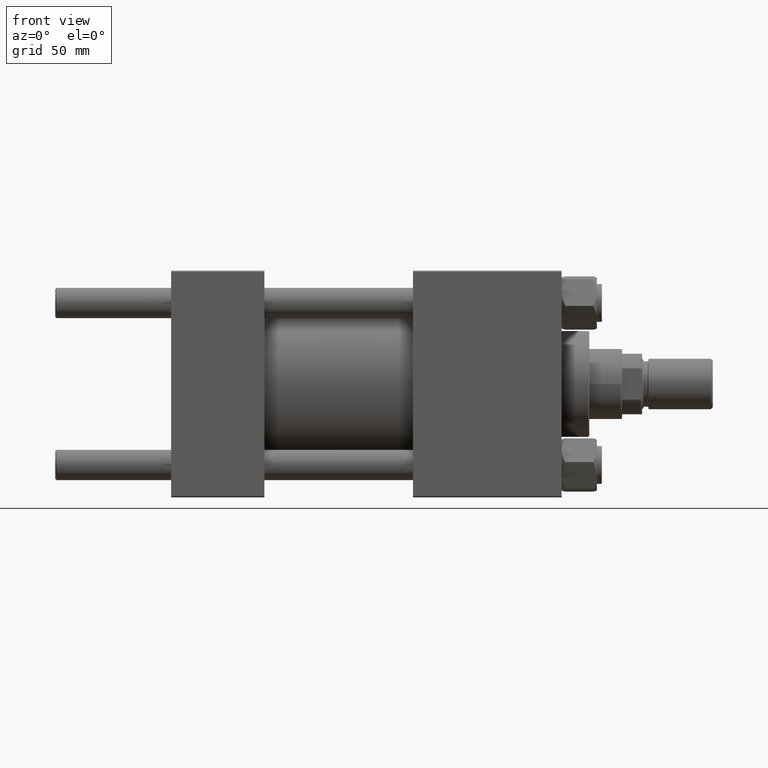
[diagram: clean part render]
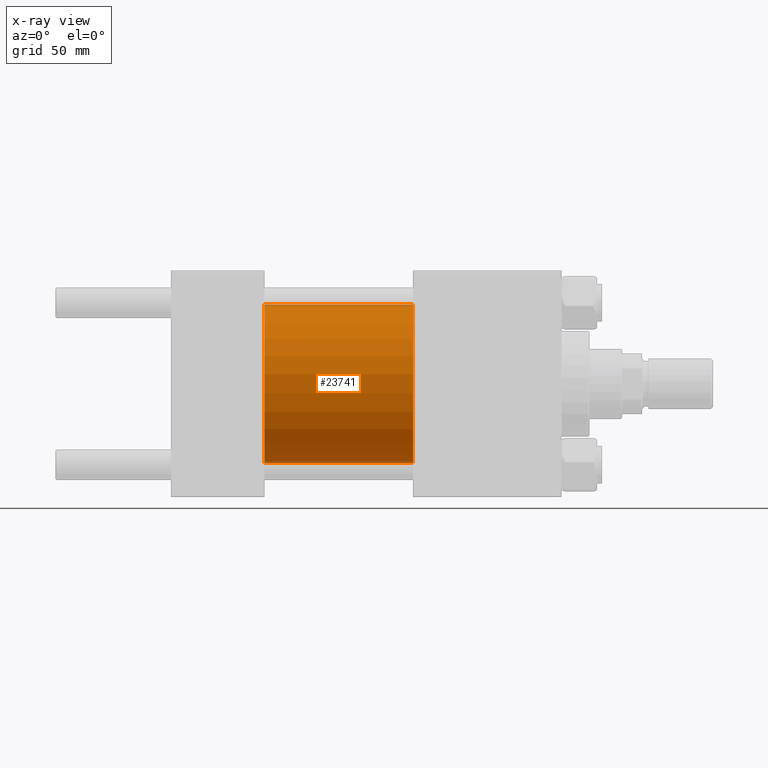
[diagram: x-ray — body ghosted, one internal face saturated and labeled with its STEP entity id]
A machine part, front view, then the same camera in x-ray: the body is ghosted and one INTERNAL B-rep face — a face not visible from any outside direction — is saturated and labeled: STEP entity #23741.
In plain terms, the highlighted cylindrical surface (partial cylindrical patch) has radius 31.5 mm, axis along (-1, -0, -0).
Its self-contained STEP definition (entity closure, byte-faithful):
#1499 = CYLINDRICAL_SURFACE ( 'NONE', #25776, 31.50000000000000000 ) ;
#2858 = EDGE_CURVE ( 'NONE', #11970, #4035, #38074, .T. ) ;
#3987 = ORIENTED_EDGE ( 'NONE', *, *, #14461, .F. ) ;
#4035 = VERTEX_POINT ( 'NONE', #35686 ) ;
#4311 = FACE_OUTER_BOUND ( 'NONE', #33288, .T. ) ;
#4970 = DIRECTION ( 'NONE',  ( 1.000000000000000000, 0.000000000000000000, 0.000000000000000000 ) ) ;
#5936 = CIRCLE ( 'NONE', #31184, 31.50000000000000000 ) ;
#7358 = CARTESIAN_POINT ( 'NONE',  ( 37.00000000000000000, 0.000000000000000000, 31.50000000000000000 ) ) ;
#8205 = CARTESIAN_POINT ( 'NONE',  ( 96.00000000000000000, 0.000000000000000000, 31.50000000000000000 ) ) ;
#8311 = DIRECTION ( 'NONE',  ( 0.000000000000000000, 0.000000000000000000, -1.000000000000000000 ) ) ;
#8814 = CARTESIAN_POINT ( 'NONE',  ( 96.00000000000000000, 3.857637417314162689E-15, -31.50000000000000000 ) ) ;
#9153 = CARTESIAN_POINT ( 'NONE',  ( 96.00000000000000000, 0.000000000000000000, 0.000000000000000000 ) ) ;
#10464 = DIRECTION ( 'NONE',  ( -1.000000000000000000, -0.000000000000000000, -0.000000000000000000 ) ) ;
#11970 = VERTEX_POINT ( 'NONE', #7358 ) ;
#12360 = DIRECTION ( 'NONE',  ( 0.000000000000000000, 0.000000000000000000, -1.000000000000000000 ) ) ;
#14461 = EDGE_CURVE ( 'NONE', #31478, #11970, #16609, .T. ) ;
#15163 = ORIENTED_EDGE ( 'NONE', *, *, #44075, .T. ) ;
#16609 = LINE ( 'NONE', #8205, #34434 ) ;
#16996 = ORIENTED_EDGE ( 'NONE', *, *, #46276, .T. ) ;
#17311 = VERTEX_POINT ( 'NONE', #8814 ) ;
#20044 = CARTESIAN_POINT ( 'NONE',  ( 37.00000000000000000, 0.000000000000000000, 0.000000000000000000 ) ) ;
#23741 = ADVANCED_FACE ( 'NONE', ( #4311 ), #1499, .F. ) ;
#25776 = AXIS2_PLACEMENT_3D ( 'NONE', #9153, #31624, #32368 ) ;
#26696 = AXIS2_PLACEMENT_3D ( 'NONE', #20044, #4970, #8311 ) ;
#29473 = CARTESIAN_POINT ( 'NONE',  ( 96.00000000000000000, 0.000000000000000000, 31.50000000000000000 ) ) ;
#31184 = AXIS2_PLACEMENT_3D ( 'NONE', #32238, #47757, #12360 ) ;
#31478 = VERTEX_POINT ( 'NONE', #29473 ) ;
#31624 = DIRECTION ( 'NONE',  ( -1.000000000000000000, -0.000000000000000000, -0.000000000000000000 ) ) ;
#32238 = CARTESIAN_POINT ( 'NONE',  ( 96.00000000000000000, 0.000000000000000000, 0.000000000000000000 ) ) ;
#32368 = DIRECTION ( 'NONE',  ( 0.000000000000000000, 0.000000000000000000, 1.000000000000000000 ) ) ;
#33288 = EDGE_LOOP ( 'NONE', ( #16996, #15163, #48575, #3987 ) ) ;
#34434 = VECTOR ( 'NONE', #39574, 1000.000000000000000 ) ;
#35686 = CARTESIAN_POINT ( 'NONE',  ( 37.00000000000000000, 3.857637417314162689E-15, -31.50000000000000000 ) ) ;
#38074 = CIRCLE ( 'NONE', #26696, 31.50000000000000000 ) ;
#38239 = LINE ( 'NONE', #45364, #44112 ) ;
#39574 = DIRECTION ( 'NONE',  ( -1.000000000000000000, -0.000000000000000000, -0.000000000000000000 ) ) ;
#44075 = EDGE_CURVE ( 'NONE', #17311, #4035, #38239, .T. ) ;
#44112 = VECTOR ( 'NONE', #10464, 1000.000000000000000 ) ;
#45364 = CARTESIAN_POINT ( 'NONE',  ( 96.00000000000000000, 3.857637417314162689E-15, -31.50000000000000000 ) ) ;
#46276 = EDGE_CURVE ( 'NONE', #31478, #17311, #5936, .T. ) ;
#47757 = DIRECTION ( 'NONE',  ( 1.000000000000000000, 0.000000000000000000, 0.000000000000000000 ) ) ;
#48575 = ORIENTED_EDGE ( 'NONE', *, *, #2858, .F. ) ;